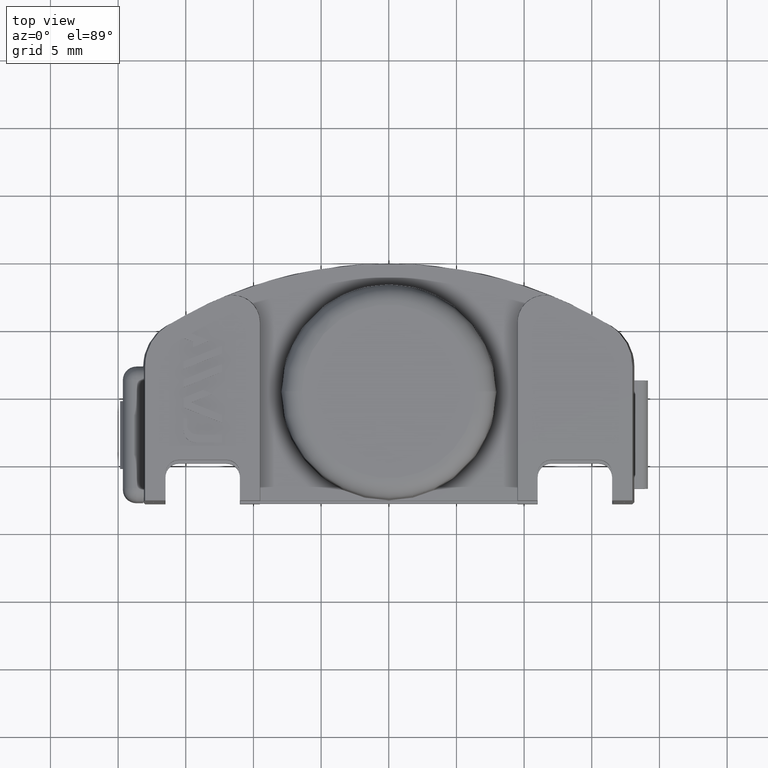
[diagram: clean part render]
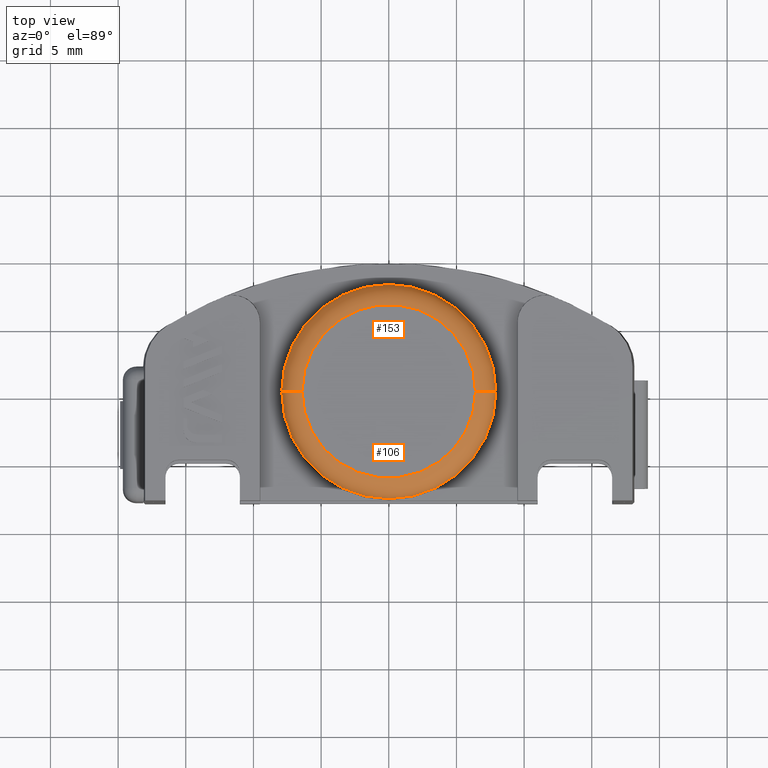
[diagram: same view with one multi-face feature highlighted, each face labeled with its STEP entity id]
A machine part, top view. The highlighted faces form ONE feature: a constant-radius fillet chain: 2 tangent blend faces with common blend radius 1.5 mm. The faces share edges in the B-rep.
Their STEP definitions:
[1] entity #153 (Torus):
#153=ADVANCED_FACE('',(#417),#418,.T.);
#417=FACE_OUTER_BOUND('',#889,.T.);
#418=TOROIDAL_SURFACE('',#890,6.41249618329305,1.5);
#889=EDGE_LOOP('',(#1727,#1728,#1729,#1730));
#890=AXIS2_PLACEMENT_3D('',#1731,#1732,#1733);
#1727=ORIENTED_EDGE('',*,*,#2824,.T.);
#1728=ORIENTED_EDGE('',*,*,#2997,.F.);
#1729=ORIENTED_EDGE('',*,*,#2826,.T.);
#1730=ORIENTED_EDGE('',*,*,#2998,.F.);
#1731=CARTESIAN_POINT('',(0.0,0.0,-1.5));
#1732=DIRECTION('',(0.0,-1.22464679914735E-16,-1.0));
#1733=DIRECTION('',(1.0,0.0,0.0));
#2824=EDGE_CURVE('',#3350,#3351,#3352,.T.);
#2826=EDGE_CURVE('',#3355,#3353,#3356,.T.);
#2997=EDGE_CURVE('',#3355,#3351,#3655,.T.);
#2998=EDGE_CURVE('',#3350,#3353,#3656,.F.);
#3350=VERTEX_POINT('',#4202);
#3351=VERTEX_POINT('',#4203);
#3352=CIRCLE('',#4204,1.5);
#3353=VERTEX_POINT('',#4205);
#3355=VERTEX_POINT('',#4207);
#3356=CIRCLE('',#4208,1.5);
#3655=CIRCLE('',#4781,7.91226772602764);
#3656=CIRCLE('',#4782,6.41249618329305);
#4202=CARTESIAN_POINT('',(6.41249618329305,0.0,0.0));
#4203=CARTESIAN_POINT('',(7.91226772602764,0.0,-1.47382139034405));
#4204=AXIS2_PLACEMENT_3D('',#5635,#5636,#5637);
#4205=CARTESIAN_POINT('',(-6.41249618329305,-6.01607272669342E-16,8.49238404517917E-32));
#4207=CARTESIAN_POINT('',(-7.91226772602764,1.58450268909347E-15,-1.47382139034405));
#4208=AXIS2_PLACEMENT_3D('',#5641,#5642,#5643);
#4781=AXIS2_PLACEMENT_3D('',#5876,#5877,#5878);
#4782=AXIS2_PLACEMENT_3D('',#5879,#5880,#5881);
#5635=CARTESIAN_POINT('',(6.41249618329305,7.85304292541445E-16,-1.5));
#5636=DIRECTION('',(-1.22464679914735E-16,1.0,-1.22464679914735E-16));
#5637=DIRECTION('',(1.0,1.22464679914735E-16,-1.49975978266186E-32));
#5641=CARTESIAN_POINT('',(-6.41249618329305,-7.85304292541445E-16,-1.5));
#5642=DIRECTION('',(-1.22464679914735E-16,1.0,-1.22464679914735E-16));
#5643=DIRECTION('',(-1.0,-1.22464679914735E-16,1.49975978266186E-32));
#5876=CARTESIAN_POINT('',(0.0,0.0,-1.47382139034405));
#5877=DIRECTION('',(0.0,-1.22464679914735E-16,-1.0));
#5878=DIRECTION('',(1.0,0.0,0.0));
#5879=CARTESIAN_POINT('',(0.0,0.0,0.0));
#5880=DIRECTION('',(0.0,-1.22464679914735E-16,-1.0));
#5881=DIRECTION('',(1.0,0.0,0.0));
[2] entity #106 (Torus):
#106=ADVANCED_FACE('',(#316),#317,.T.);
#316=FACE_OUTER_BOUND('',#716,.T.);
#317=TOROIDAL_SURFACE('',#717,6.41249618329305,1.5);
#716=EDGE_LOOP('',(#1351,#1352,#1353,#1354));
#717=AXIS2_PLACEMENT_3D('',#1355,#1356,#1357);
#1351=ORIENTED_EDGE('',*,*,#2824,.F.);
#1352=ORIENTED_EDGE('',*,*,#2825,.F.);
#1353=ORIENTED_EDGE('',*,*,#2826,.F.);
#1354=ORIENTED_EDGE('',*,*,#2827,.F.);
#1355=CARTESIAN_POINT('',(0.0,0.0,-1.5));
#1356=DIRECTION('',(0.0,-1.22464679914735E-16,-1.0));
#1357=DIRECTION('',(1.0,0.0,0.0));
#2824=EDGE_CURVE('',#3350,#3351,#3352,.T.);
#2825=EDGE_CURVE('',#3353,#3350,#3354,.F.);
#2826=EDGE_CURVE('',#3355,#3353,#3356,.T.);
#2827=EDGE_CURVE('',#3351,#3355,#3357,.T.);
#3350=VERTEX_POINT('',#4202);
#3351=VERTEX_POINT('',#4203);
#3352=CIRCLE('',#4204,1.5);
#3353=VERTEX_POINT('',#4205);
#3354=CIRCLE('',#4206,6.41249618329305);
#3355=VERTEX_POINT('',#4207);
#3356=CIRCLE('',#4208,1.5);
#3357=CIRCLE('',#4209,7.91226772602764);
#4202=CARTESIAN_POINT('',(6.41249618329305,0.0,0.0));
#4203=CARTESIAN_POINT('',(7.91226772602764,0.0,-1.47382139034405));
#4204=AXIS2_PLACEMENT_3D('',#5635,#5636,#5637);
#4205=CARTESIAN_POINT('',(-6.41249618329305,-6.01607272669342E-16,8.49238404517917E-32));
#4206=AXIS2_PLACEMENT_3D('',#5638,#5639,#5640);
#4207=CARTESIAN_POINT('',(-7.91226772602764,1.58450268909347E-15,-1.47382139034405));
#4208=AXIS2_PLACEMENT_3D('',#5641,#5642,#5643);
#4209=AXIS2_PLACEMENT_3D('',#5644,#5645,#5646);
#5635=CARTESIAN_POINT('',(6.41249618329305,7.85304292541445E-16,-1.5));
#5636=DIRECTION('',(-1.22464679914735E-16,1.0,-1.22464679914735E-16));
#5637=DIRECTION('',(1.0,1.22464679914735E-16,-1.49975978266186E-32));
#5638=CARTESIAN_POINT('',(0.0,0.0,0.0));
#5639=DIRECTION('',(0.0,-1.22464679914735E-16,-1.0));
#5640=DIRECTION('',(1.0,0.0,0.0));
#5641=CARTESIAN_POINT('',(-6.41249618329305,-7.85304292541445E-16,-1.5));
#5642=DIRECTION('',(-1.22464679914735E-16,1.0,-1.22464679914735E-16));
#5643=DIRECTION('',(-1.0,-1.22464679914735E-16,1.49975978266186E-32));
#5644=CARTESIAN_POINT('',(0.0,0.0,-1.47382139034405));
#5645=DIRECTION('',(0.0,-1.22464679914735E-16,-1.0));
#5646=DIRECTION('',(1.0,0.0,0.0));